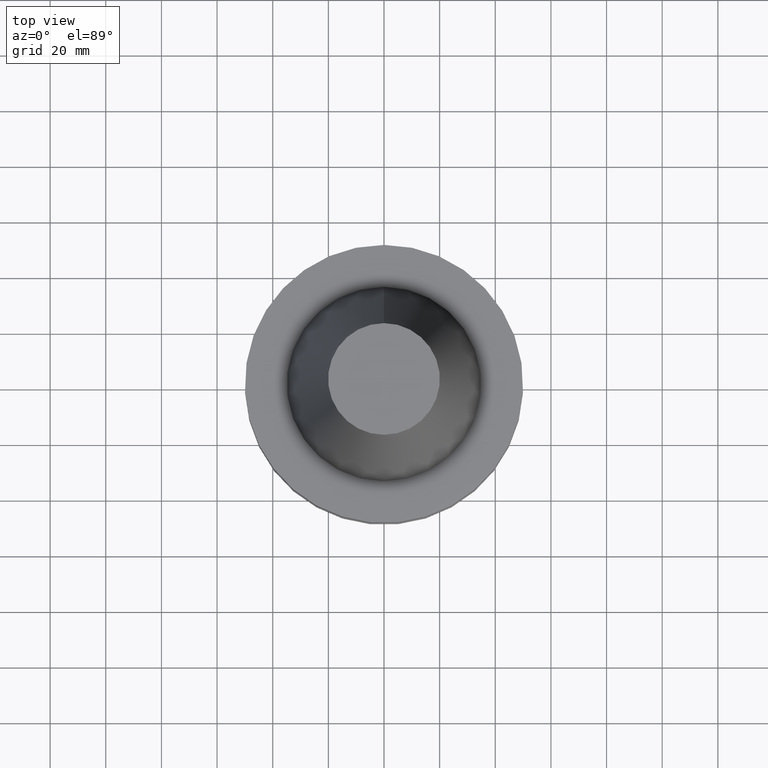
[diagram: clean part render]
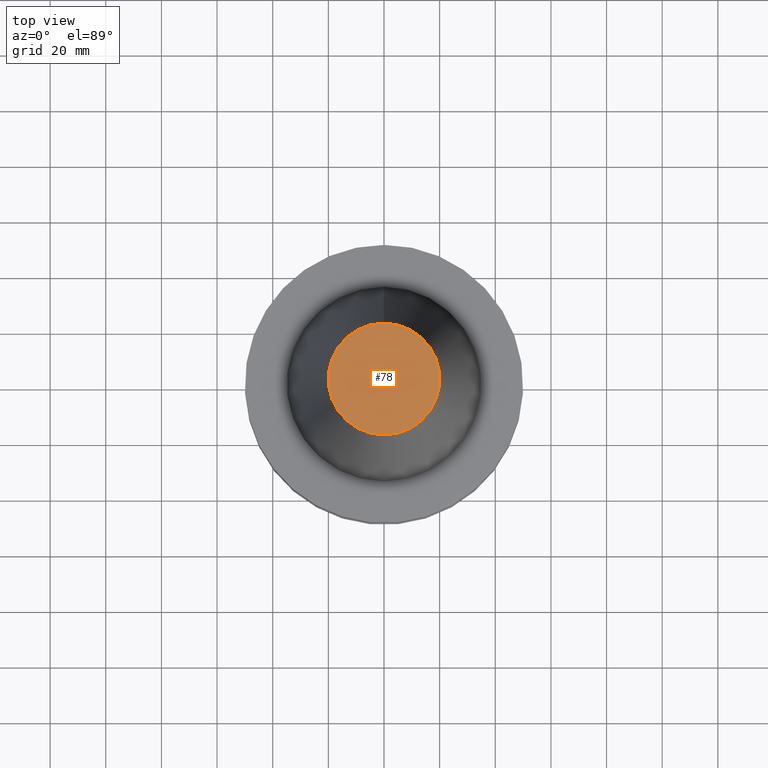
[diagram: same view with one face highlighted and labeled with its STEP entity id]
A machine part, top view. The second image highlights one B-rep face of the part: STEP entity #78.
In plain terms, the highlighted planar face has unit normal (-0, -0, 1).
Its self-contained STEP definition (entity closure, byte-faithful):
#78=ADVANCED_FACE('',(#98),#99,.T.);
#98=FACE_OUTER_BOUND('',#138,.T.);
#99=PLANE('',#139);
#138=EDGE_LOOP('',(#184));
#139=AXIS2_PLACEMENT_3D('',#185,#186,#187);
#184=ORIENTED_EDGE('',*,*,#241,.F.);
#185=CARTESIAN_POINT('',(-6.23345220766003E-015,10.0395833329059,101.8));
#186=DIRECTION('',(-6.12323399573677E-017,-1.22464679914735E-016,1.0));
#187=DIRECTION('',(1.23259516440783E-032,-1.0,-1.22464679914735E-016));
#241=EDGE_CURVE('',#257,#257,#258,.T.);
#257=VERTEX_POINT('',#283);
#258=CIRCLE('',#284,20.0791666658118);
#283=CARTESIAN_POINT('',(-6.23345220766003E-015,20.0791666658118,101.8));
#284=AXIS2_PLACEMENT_3D('',#312,#313,#314);
#312=CARTESIAN_POINT('',(-6.23345220766003E-015,-1.24669044153201E-014,101.8));
#313=DIRECTION('',(6.12323399573677E-017,1.22464679914735E-016,-1.0));
#314=DIRECTION('',(-1.23259516440783E-032,1.0,1.22464679914735E-016));